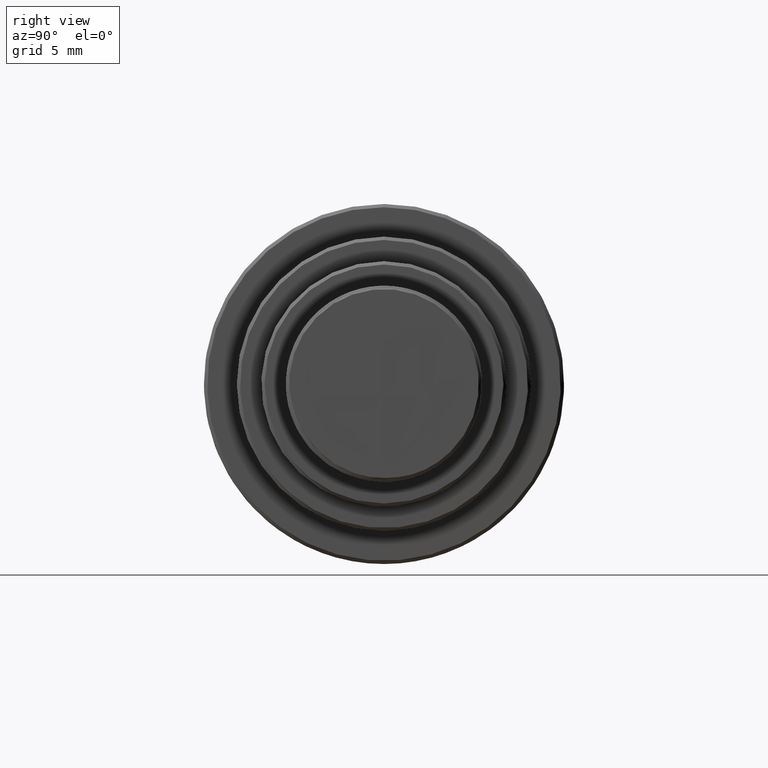
[diagram: clean part render]
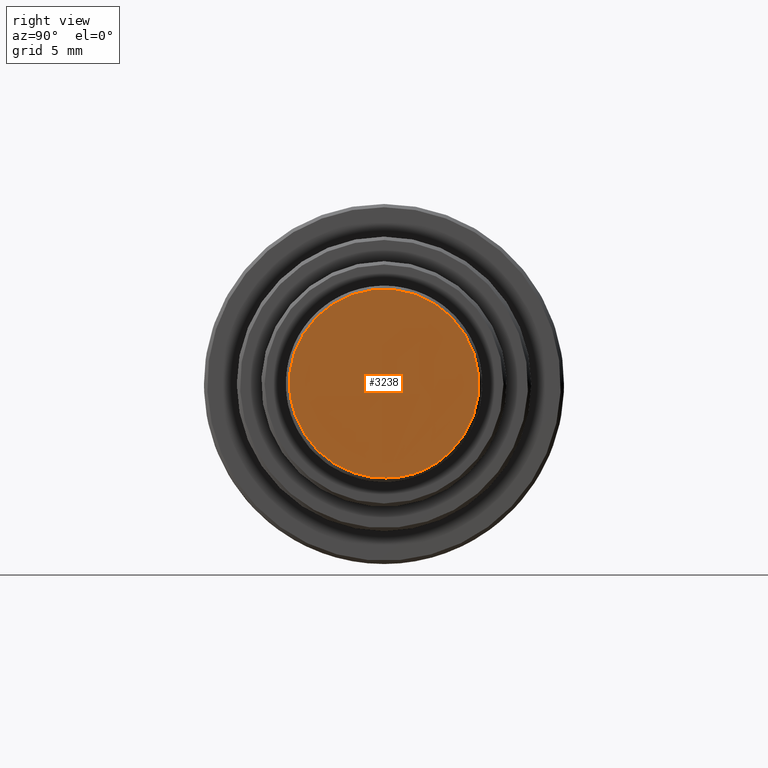
[diagram: same view with one face highlighted and labeled with its STEP entity id]
A machine part, right view. The second image highlights one B-rep face of the part: STEP entity #3238.
In plain terms, the highlighted planar face has unit normal (-1, 0, 0).
Its self-contained STEP definition (entity closure, byte-faithful):
#40 = CARTESIAN_POINT ( 'NONE',  ( 5.684344596586233993E-11, -5.249515451423402368, 2.516963518860719340 ) ) ;
#86 = CARTESIAN_POINT ( 'NONE',  ( 5.684344596586235286E-11, 1.513298295060153453, 5.621605295658601342 ) ) ;
#87 = B_SPLINE_CURVE_WITH_KNOTS ( 'NONE', 3,
 ( #3820, #154, #6715, #691 ),
 .UNSPECIFIED., .F., .F.,
 ( 4, 4 ),
 ( 0.000000000000000000, 1.000000000000000000 ),
 .UNSPECIFIED. ) ;
#154 = CARTESIAN_POINT ( 'NONE',  ( 2.984482048224130241E-05, -5.714716391001787521, -1.099150402668120918 ) ) ;
#207 = CARTESIAN_POINT ( 'NONE',  ( -0.000000000000000000, -1.966115171525299576, -5.395222837721472153 ) ) ;
#220 = PLANE ( 'NONE',  #9540 ) ;
#224 = CARTESIAN_POINT ( 'NONE',  ( 5.684344596586232701E-11, 5.076322585267166509, -2.850169616060641786 ) ) ;
#312 = CARTESIAN_POINT ( 'NONE',  ( 5.684347397441843447E-11, 5.458259146073535462, 2.024827134427377384 ) ) ;
#403 = CARTESIAN_POINT ( 'NONE',  ( -0.000000000000000000, 1.269838425342395549, -5.626735485592481822 ) ) ;
#691 = CARTESIAN_POINT ( 'NONE',  ( 3.407227929545218498E-05, -5.770573353954298490, 0.5833137811228225056 ) ) ;
#861 = CARTESIAN_POINT ( 'NONE',  ( 5.684344596586232701E-11, -4.080701332931297109, 4.152155399478869136 ) ) ;
#898 = ORIENTED_EDGE ( 'NONE', *, *, #6370, .F. ) ;
#908 = CARTESIAN_POINT ( 'NONE',  ( 5.684347216741483089E-11, 5.028677502827961554, 2.933414461435808196 ) ) ;
#947 = DIRECTION ( 'NONE',  ( 0.000000000000000000, 0.000000000000000000, 1.000000000000000000 ) ) ;
#979 = CARTESIAN_POINT ( 'NONE',  ( 0.000000000000000000, -5.226747870701496268, -2.448807572639622343 ) ) ;
#996 = CARTESIAN_POINT ( 'NONE',  ( 5.684344596586232701E-11, 5.743031545171691121, -0.9539950215654435794 ) ) ;
#1092 = CARTESIAN_POINT ( 'NONE',  ( 5.684344596586233993E-11, 5.821530545352161745, 0.04795768489557513531 ) ) ;
#1138 = CARTESIAN_POINT ( 'NONE',  ( -0.000000000000000000, 0.6399841074321224177, -5.724182872724396631 ) ) ;
#1536 = CARTESIAN_POINT ( 'NONE',  ( 5.684344596586232701E-11, -2.876516646060717441, 5.061439500275034753 ) ) ;
#1654 = CARTESIAN_POINT ( 'NONE',  ( 0.000000000000000000, -3.787391381591686645, -4.355686172068941708 ) ) ;
#1668 = DIRECTION ( 'NONE',  ( -1.000000000000000000, 0.000000000000000000, 0.000000000000000000 ) ) ;
#1700 = CARTESIAN_POINT ( 'NONE',  ( -2.004270863851008723E-05, 0.1091402755554323756, -5.738999768572259796 ) ) ;
#1764 = CARTESIAN_POINT ( 'NONE',  ( 5.684344596586233993E-11, 5.304947006834376921, -2.397927247580248444 ) ) ;
#2255 = CARTESIAN_POINT ( 'NONE',  ( 5.684344596586233993E-11, -4.426320225906569483, 3.781561461584250772 ) ) ;
#2350 = CARTESIAN_POINT ( 'NONE',  ( 5.684344596586232701E-11, 4.105870948405884846, 4.127268053451983221 ) ) ;
#2376 = CARTESIAN_POINT ( 'NONE',  ( -0.000000000000000000, -4.946044019108998491, -2.975393113130276213 ) ) ;
#2419 = CARTESIAN_POINT ( 'NONE',  ( -0.000000000000000000, -1.096332817886783051, -5.667370575098456875 ) ) ;
#2437 = CARTESIAN_POINT ( 'NONE',  ( 5.684344596586233993E-11, 4.510482547848543078, -3.680769622723286005 ) ) ;
#2578 = CARTESIAN_POINT ( 'NONE',  ( -0.000000000000000000, 1.008054927510148246, -5.674623117800815741 ) ) ;
#2729 = ORIENTED_EDGE ( 'NONE', *, *, #6381, .T. ) ;
#2743 = VERTEX_POINT ( 'NONE', #6711 ) ;
#3148 = CARTESIAN_POINT ( 'NONE',  ( 0.000000000000000000, -1.825114824796554291, -5.444457778712675555 ) ) ;
#3238 = ADVANCED_FACE ( 'NONE', ( #3563 ), #220, .F. ) ;
#3347 = CARTESIAN_POINT ( 'NONE',  ( 0.000000000000000000, 2.164389877265887829, -5.386191546507328454 ) ) ;
#3357 = CARTESIAN_POINT ( 'NONE',  ( 4.837317500409689294E-06, -5.424080335282306820, -1.877138817844928864 ) ) ;
#3563 = FACE_OUTER_BOUND ( 'NONE', #7086, .T. ) ;
#3666 = CARTESIAN_POINT ( 'NONE',  ( 0.000000000000000000, 0.000000000000000000, 0.000000000000000000 ) ) ;
#3758 = CARTESIAN_POINT ( 'NONE',  ( 3.407227929545218498E-05, -5.770573353954298490, 0.5833137811228225056 ) ) ;
#3802 = CARTESIAN_POINT ( 'NONE',  ( 5.684344596586231408E-11, -1.963142462052274162, 5.480747166554585270 ) ) ;
#3820 = CARTESIAN_POINT ( 'NONE',  ( 4.837317500409689294E-06, -5.424080335282306820, -1.877138817844928864 ) ) ;
#3873 = CARTESIAN_POINT ( 'NONE',  ( -0.000000000000000000, -2.655878975407059528, -5.104852021500197345 ) ) ;
#3982 = CARTESIAN_POINT ( 'NONE',  ( 5.684344596586232701E-11, 5.638314125452245307, -1.449804004938073154 ) ) ;
#4379 = EDGE_CURVE ( 'NONE', #5465, #2743, #4505, .T. ) ;
#4482 = CARTESIAN_POINT ( 'NONE',  ( 5.684347389228193288E-11, -1.479091051647313915, 5.630702220056183371 ) ) ;
#4505 = B_SPLINE_CURVE_WITH_KNOTS ( 'NONE', 3,
 ( #4644, #979, #2376, #8401, #1654, #7540, #3873, #8308, #207, #3148, #2419, #5362, #1700 ),
 .UNSPECIFIED., .F., .F.,
 ( 4, 2, 2, 1, 2, 2, 4 ),
 ( 0.000000000000000000, 0.2499999999999999445, 0.4999999999999998890, 0.6249999999999998890, 0.6874999999999998890, 0.7499999999999997780, 1.000000000000000000 ),
 .UNSPECIFIED. ) ;
#4572 = CARTESIAN_POINT ( 'NONE',  ( 5.684344596586232701E-11, 2.907236951994125906, 5.043856771853131526 ) ) ;
#4644 = CARTESIAN_POINT ( 'NONE',  ( 4.837317500409689294E-06, -5.424080335282306820, -1.877138817844928864 ) ) ;
#4707 = CARTESIAN_POINT ( 'NONE',  ( 5.684344596586235286E-11, 3.413009329224218291, -4.716342348540577767 ) ) ;
#4799 = CARTESIAN_POINT ( 'NONE',  ( -2.004270863851008723E-05, 0.1091402755554323756, -5.738999768572259796 ) ) ;
#4826 = CARTESIAN_POINT ( 'NONE',  ( 3.407227929545218498E-05, -5.770573353954298490, 0.5833137811228225056 ) ) ;
#5250 = CARTESIAN_POINT ( 'NONE',  ( 5.684344596586232701E-11, -5.010749442123188402, 2.963934523276613664 ) ) ;
#5285 = ORIENTED_EDGE ( 'NONE', *, *, #7613, .F. ) ;
#5292 = CARTESIAN_POINT ( 'NONE',  ( 5.684344596586233993E-11, 2.457601671517476216, 5.277566849805247706 ) ) ;
#5340 = ORIENTED_EDGE ( 'NONE', *, *, #4379, .T. ) ;
#5362 = CARTESIAN_POINT ( 'NONE',  ( 0.000000000000000000, -0.5001657843444829998, -5.750742021895509204 ) ) ;
#5465 = VERTEX_POINT ( 'NONE', #3357 ) ;
#5473 = CARTESIAN_POINT ( 'NONE',  ( 0.000000000000000000, 0.3221141090432393383, -5.740217894337419580 ) ) ;
#5523 = CARTESIAN_POINT ( 'NONE',  ( -0.000000000000000000, 1.165204383677373334, -5.646772030753199445 ) ) ;
#6022 = CARTESIAN_POINT ( 'NONE',  ( 5.684347216741484382E-11, 1.018701800229917298, 5.731907577082616889 ) ) ;
#6202 = CARTESIAN_POINT ( 'NONE',  ( 0.000000000000000000, 1.324002208467468744, -5.615561551029171206 ) ) ;
#6295 = CARTESIAN_POINT ( 'NONE',  ( -2.568686238904711400E-05, 2.538091554988506804, -5.215164817410147258 ) ) ;
#6370 = EDGE_CURVE ( 'NONE', #9322, #6594, #6650, .T. ) ;
#6381 = EDGE_CURVE ( 'NONE', #2743, #6594, #6877, .T. ) ;
#6594 = VERTEX_POINT ( 'NONE', #6924 ) ;
#6649 = CARTESIAN_POINT ( 'NONE',  ( 5.684344596586232701E-11, -5.604181467069015987, 1.576600112320483138 ) ) ;
#6650 = B_SPLINE_CURVE_WITH_KNOTS ( 'NONE', 3,
 ( #3758, #8867, #6649, #40, #5250, #2255, #861, #8148, #1536, #3802, #4482, #7424, #6697, #6022, #86, #5292, #4572, #8959, #2350, #8241, #908, #312, #7015, #7599, #1092, #996, #3982, #1764, #224, #2437, #9233, #4707, #7696, #7648 ),
 .UNSPECIFIED., .F., .F.,
 ( 4, 2, 2, 2, 2, 2, 2, 2, 2, 2, 2, 2, 2, 2, 2, 2, 4 ),
 ( 0.000000000000000000, 0.06250000000000001388, 0.1250000000000000278, 0.1875000000000000555, 0.2500000000000000555, 0.3125000000000000555, 0.3750000000000001110, 0.4375000000000001110, 0.5000000000000001110, 0.5625000000000001110, 0.6250000000000001110, 0.6875000000000001110, 0.7500000000000002220, 0.8125000000000002220, 0.8750000000000002220, 0.9375000000000002220, 1.000000000000000000 ),
 .UNSPECIFIED. ) ;
#6697 = CARTESIAN_POINT ( 'NONE',  ( 5.684347397441844740E-11, 0.01769808983620098711, 5.821701178145862521 ) ) ;
#6711 = CARTESIAN_POINT ( 'NONE',  ( -2.004270863851008723E-05, 0.1091402755554323756, -5.738999768572259796 ) ) ;
#6715 = CARTESIAN_POINT ( 'NONE',  ( 4.899467434803852903E-05, -5.835430784639608071, -0.2533023051858767638 ) ) ;
#6877 = B_SPLINE_CURVE_WITH_KNOTS ( 'NONE', 3,
 ( #4799, #5473, #1138, #2578, #5523, #403, #6202, #7745, #3347, #6295 ),
 .UNSPECIFIED., .F., .F.,
 ( 4, 1, 1, 2, 2, 4 ),
 ( 0.000000000000000000, 0.2500000000000000000, 0.3749999999999999445, 0.4374999999999999445, 0.4999999999999999445, 1.000000000000000000 ),
 .UNSPECIFIED. ) ;
#6924 = CARTESIAN_POINT ( 'NONE',  ( -2.568686238904711400E-05, 2.538091554988506804, -5.215164817410147258 ) ) ;
#7015 = CARTESIAN_POINT ( 'NONE',  ( 5.684347224955135833E-11, 5.613663587579743819, 1.542497635489309626 ) ) ;
#7086 = EDGE_LOOP ( 'NONE', ( #2729, #898, #5285, #5340 ) ) ;
#7424 = CARTESIAN_POINT ( 'NONE',  ( 5.684347224955134541E-11, -0.4886332253132376069, 5.801185689247393640 ) ) ;
#7540 = CARTESIAN_POINT ( 'NONE',  ( -0.000000000000000000, -3.043384278952407485, -4.876397525232780694 ) ) ;
#7599 = CARTESIAN_POINT ( 'NONE',  ( 5.684347389228191996E-11, 5.795306173680790707, 0.5540254356129458158 ) ) ;
#7613 = EDGE_CURVE ( 'NONE', #5465, #9322, #87, .T. ) ;
#7648 = CARTESIAN_POINT ( 'NONE',  ( -2.568686238904711400E-05, 2.538091554988506804, -5.215164817410147258 ) ) ;
#7696 = CARTESIAN_POINT ( 'NONE',  ( 5.684344596586235286E-11, 2.989939182703854392, -4.995275919680614685 ) ) ;
#7745 = CARTESIAN_POINT ( 'NONE',  ( -0.000000000000000000, 1.776448992299796359, -5.515964479411430865 ) ) ;
#8148 = CARTESIAN_POINT ( 'NONE',  ( 5.684344596586233993E-11, -3.305770163698387165, 4.792118681210882691 ) ) ;
#8241 = CARTESIAN_POINT ( 'NONE',  ( 5.684344596586233993E-11, 4.754532873819595551, 3.359603396500479899 ) ) ;
#8308 = CARTESIAN_POINT ( 'NONE',  ( -0.000000000000000000, -2.245121043523145676, -5.285454747295864841 ) ) ;
#8401 = CARTESIAN_POINT ( 'NONE',  ( -0.000000000000000000, -4.216937380077004249, -3.941181621786390643 ) ) ;
#8867 = CARTESIAN_POINT ( 'NONE',  ( 5.684344596586235286E-11, -5.720054581109065062, 1.083279012601080060 ) ) ;
#8959 = CARTESIAN_POINT ( 'NONE',  ( 5.684344596586233993E-11, 3.731402836342423868, 4.468685567697115779 ) ) ;
#9233 = CARTESIAN_POINT ( 'NONE',  ( 5.684344596586232701E-11, 4.173309836426630781, -4.059064281234473270 ) ) ;
#9322 = VERTEX_POINT ( 'NONE', #4826 ) ;
#9540 = AXIS2_PLACEMENT_3D ( 'NONE', #3666, #1668, #947 ) ;